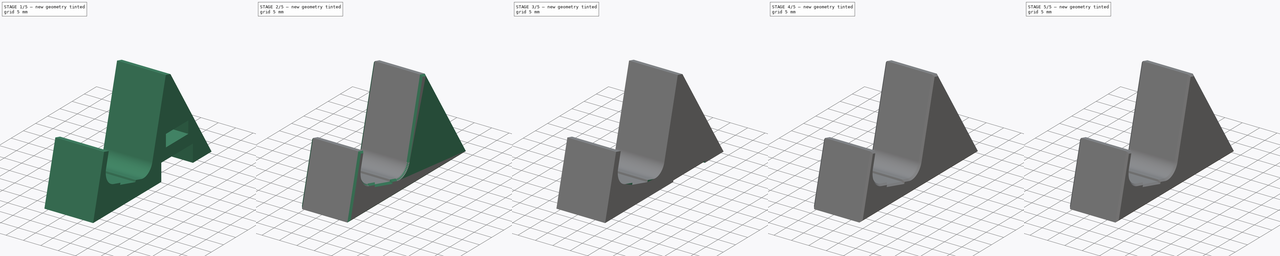
[diagram: build sequence overview — one tinted view per stage of 5, left to right]
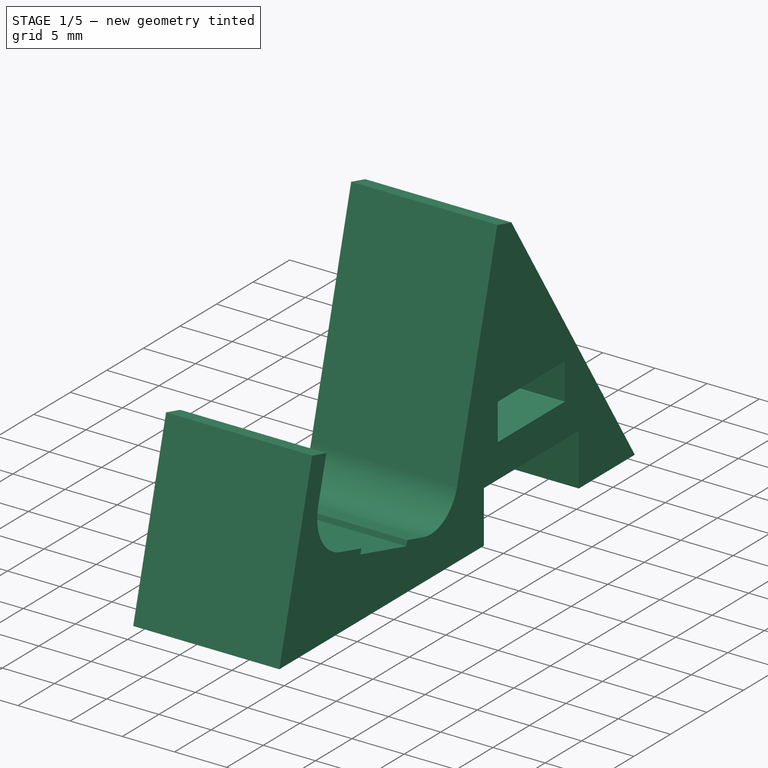
[diagram: stage 1 of 5 — iso view after this stage's code; geometry added in this stage tinted green]
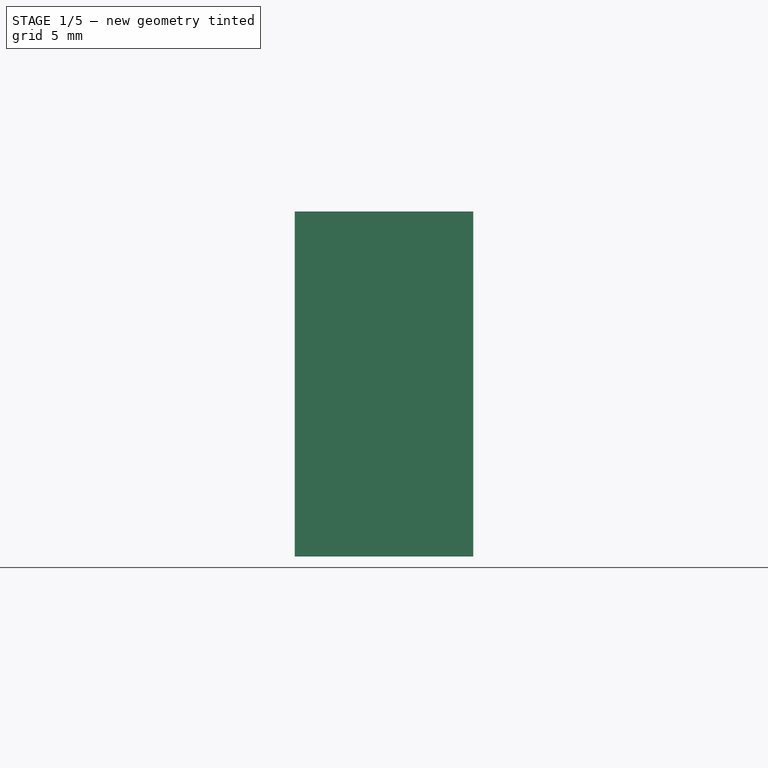
[diagram: stage 1 of 5 — front view after this stage's code; geometry added in this stage tinted green]
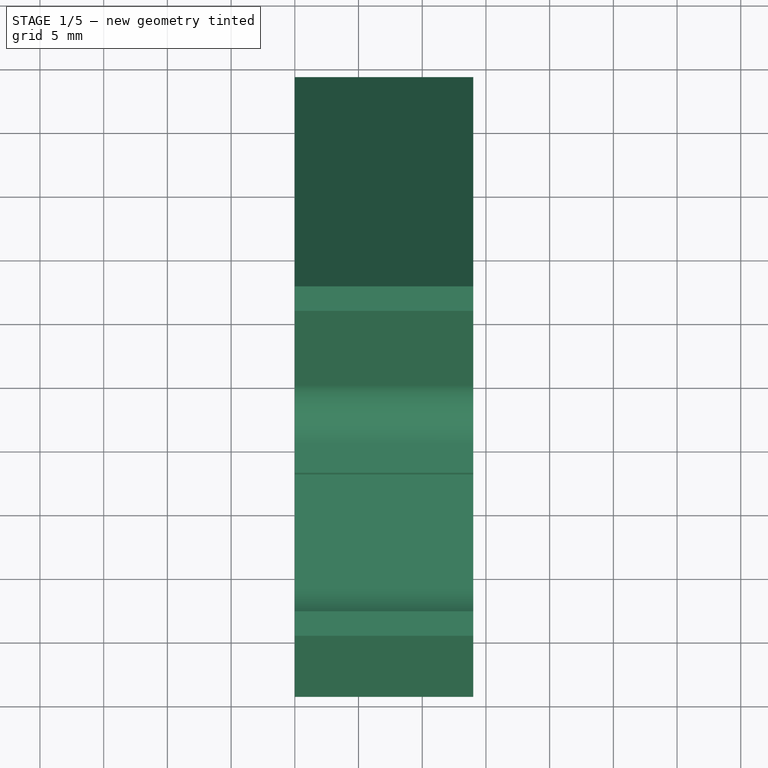
[diagram: stage 1 of 5 — top view after this stage's code; geometry added in this stage tinted green]
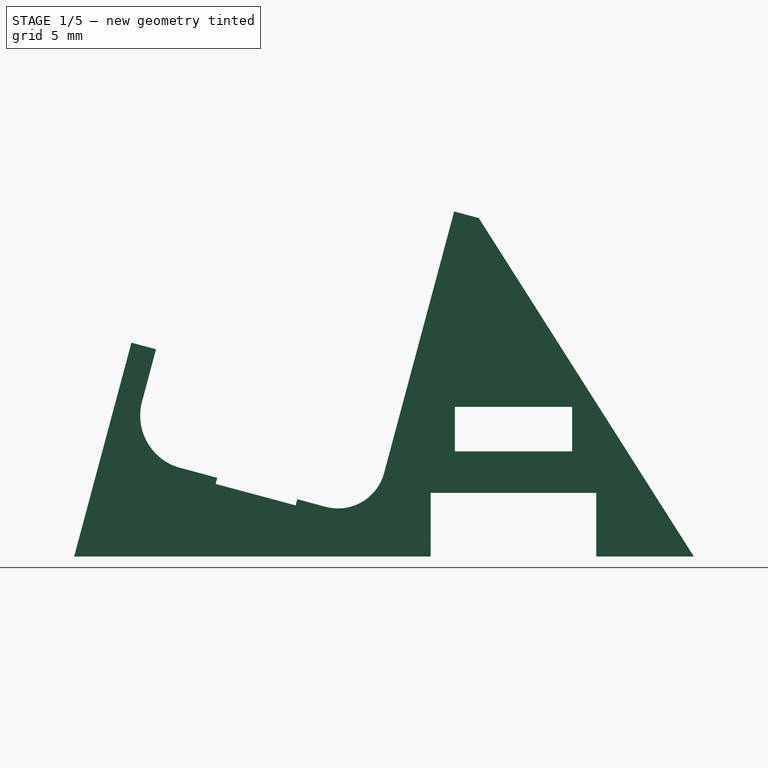
[diagram: stage 1 of 5 — right view after this stage's code; geometry added in this stage tinted green]
FCSTD DOCUMENT  (FreeCAD 0.21R33771 (Git))
Label: New PSP Slim Kit
License: All rights reserved
LicenseURL: http://en.wikipedia.org/wiki/All_rights_reserved
objects: Sketcher::SketchObject×10, PartDesign::Pocket×8, PartDesign::Pad×5, PartDesign::Body×4, Part::Part2DObjectPython×3, PartDesign::FeatureBase×3, PartDesign::Chamfer×3, App::Part×1
note: 52 computed .brp shape members not serialized (recipe doc carries the construction recipe); baked Part::Feature solids carry a one-line shape summary decoded from their .brp

FEATURE [Sketcher::SketchObject] Sketch
  FullyConstrained = true
  MapMode = 5
  Placement = pos=(0,0,0) rot=(0.57735,0.57735,0.57735;2.0944rad)
  Support = -> [YZ_Plane]
  sketch-geometry (18):
    g0: LineSegment StartX=0 StartY=0 StartZ=0 EndX=0 EndY=8.5 EndZ=0
    g1: LineSegment StartX=0 StartY=8.5 StartZ=0 EndX=-2 EndY=8.5 EndZ=0
    g2: LineSegment StartX=-2 StartY=8.5 StartZ=0 EndX=-2 EndY=-2.5 EndZ=0
    g3: LineSegment StartX=-2 StartY=-2.5 StartZ=0 EndX=21.8 EndY=-2.5 EndZ=0
    g4: LineSegment StartX=21.8 StartY=-2.5 StartZ=0 EndX=21.8 EndY=25 EndZ=0
    g5: LineSegment StartX=21.8 StartY=25 StartZ=0 EndX=19.8 EndY=25 EndZ=0
    g6: LineSegment StartX=19.8 StartY=25 StartZ=0 EndX=19.8 EndY=0 EndZ=0
    g7: LineSegment StartX=19.8 StartY=0 StartZ=0 EndX=0 EndY=0 EndZ=0
    g8: LineSegment StartX=7.25 StartY=0 StartZ=0 EndX=7.25 EndY=-0.5 EndZ=0
    g9: LineSegment StartX=7.25 StartY=-0.5 StartZ=0 EndX=13.75 EndY=-0.5 EndZ=0
    g10: LineSegment StartX=13.75 StartY=-0.5 StartZ=0 EndX=13.75 EndY=0 EndZ=0
    g11: LineSegment StartX=7.25 StartY=-0.5 StartZ=0 EndX=7.25 EndY=-2.5 EndZ=0
    g12: ArcOfCircle CenterX=4.25 CenterY=4.25 CenterZ=0 NormalX=0 NormalY=0 NormalZ=1 AngleXU=0 Radius=4.25 StartAngle=3.14159 EndAngle=4.71239
    g13: ArcOfCircle CenterX=16.05 CenterY=3.75 CenterZ=0 NormalX=0 NormalY=0 NormalZ=1 AngleXU=0 Radius=3.75 StartAngle=4.71239 EndAngle=6.28319
    g14: LineSegment StartX=4.25 StartY=9.264e-13 StartZ=0 EndX=7.25 EndY=0 EndZ=0
    g15: LineSegment StartX=13.75 StartY=0 StartZ=0 EndX=16.05 EndY=0 EndZ=0
    g16: LineSegment StartX=0 StartY=8.5 StartZ=0 EndX=0 EndY=4.25 EndZ=0
    g17: LineSegment StartX=19.8 StartY=25 StartZ=0 EndX=19.8 EndY=3.75 EndZ=0
  constraints (52):
    c: Coincident(g0,g-1)
    c: PointOnObject(g0,g-2)
    c: Coincident(g1,g0)
    c: Horizontal(g1)
    c: Coincident(g2,g1)
    c: Vertical(g2)
    c: Coincident(g3,g2)
    c: Horizontal(g3)
    c: Coincident(g4,g3)
    c: Vertical(g4)
    c: Coincident(g5,g4)
    c: Horizontal(g5)
    c: Coincident(g6,g5)
    c: PointOnObject(g6,g-1)
    c: Vertical(g6)
    c: Coincident(g7,g6)
    c: Coincident(g7,g0)
    c: Equal(g1,g5)
    c: Distance(g1) = 2
    c: Distance(g0) = 8.5
    c: Distance(g7) = 19.8
    c: Distance(g6) = 25
    c: PointOnObject(g8,g7)
    c: Vertical(g8)
    c: Coincident(g9,g8)
    c: Horizontal(g9)
    c: Coincident(g10,g9)
    c: PointOnObject(g10,g7)
    c: Vertical(g10)
    c: Distance(g10) = 0.5
    c: Distance(g9) = 6.5
    c: Coincident(g11,g8)
    c: PointOnObject(g11,g3)
    c: Vertical(g11)
    c: Equal(g1,g11)
    c: Distance(g0,g8) = 7.25
    c: PointOnObject(g12,g7)
    c: Tangent(g12,g7)
    c: Tangent(g12,g0) = 1.5708
    c: Coincident(g14,g12)
    c: Coincident(g14,g8)
    c: Coincident(g15,g10)
    c: Coincident(g15,g13)
    c: Coincident(g16,g1)
    c: Coincident(g16,g12)
    c: Coincident(g17,g5)
    c: Coincident(g17,g13)
    c: DistanceY(g0,g12) = 4.25
    c: DistanceY(g6,g13) = 3.75
    c: DistanceX(g13,g6) = 3.75
    c: Horizontal(g15)
    c: Tangent(g13,g6) = 1.5708
FEATURE [PartDesign::Pad] Pad
  Direction = (1,-2e-16,3e-16)
  Length = 14
  Length2 = 10
  Placement = pos=(0,0,0) rot=(1,1,1;2.0944rad)
  Profile = -> Sketch
  ReferenceAxis = -> Sketch [N_Axis]
  Type = 0
FEATURE [Part::Part2DObjectPython] ShapeString  # Draft 2D object (typed FeaturePython)
  FontFile = F:/16 Bit Git Repro/16BitVirtualStudiosDesigns/Font/OpenSans-Regular.ttf
  MakeFace = true
  Placement = pos=(12.175,1,4.8) rot=(0,0.707107,0.707107;3.14159rad)
  Size = 4
  String = PSPS
  Tracking = 0
FEATURE [PartDesign::Pocket] Pocket
  BaseFeature = -> Pad
  Direction = (0,-1,2e-16)
  Length = 0
  Length2 = 5
  Offset = 0.2
  Placement = pos=(0,0,0) rot=(1,1,1;2.0944rad)
  Profile = -> ShapeString
  ReferenceAxis = -> ShapeString [N_Axis]
  Type = 3
  UpToFace = -> Pad [Face1]
FEATURE [PartDesign::Body] Body  label="Profile"
  Group = -> [Sketch,Pad,ShapeString,Pocket]
  Origin = -> Origin
  Tip = -> Pocket
FEATURE [PartDesign::FeatureBase] Clone
  BaseFeature = -> Body
  Placement = pos=(0,0,0) rot=(-1,0,0;0.261799rad)
FEATURE [Sketcher::SketchObject] Sketch001
  ExternalGeometry = -> [Clone]
  FullyConstrained = true
  MapMode = 5
  Placement = pos=(14,-1.5e-14,4e-15) rot=(0.519988,0.677661,0.519988;1.95044rad)
  Support = -> [Clone]
  sketch-geometry (19):
    g0: LineSegment StartX=21.8 StartY=25 StartZ=0 EndX=21.8 EndY=-0.5 EndZ=0
    g1: LineSegment StartX=21.8 StartY=-0.5 StartZ=0 EndX=-2 EndY=-0.5 EndZ=0
    g2: LineSegment StartX=-2 StartY=-0.5 StartZ=0 EndX=-2 EndY=-8.87719 EndZ=0
    g3: LineSegment StartX=-2 StartY=-8.87719 StartZ=0 EndX=25.0259 EndY=-1.63561 EndZ=0
    g4: LineSegment StartX=25.0259 StartY=-1.63561 StartZ=0 EndX=23.7319 EndY=3.19402 EndZ=0
    g5: LineSegment StartX=23.7319 StartY=3.19402 StartZ=0 EndX=36.2889 EndY=6.55867 EndZ=0
    g6: LineSegment StartX=36.2889 StartY=6.55867 StartZ=0 EndX=37.583 EndY=1.72904 EndZ=0
    g7: LineSegment StartX=37.583 StartY=1.72904 StartZ=0 EndX=44.9804 EndY=3.71118 EndZ=0
    g8: LineSegment StartX=44.9804 StartY=3.71118 StartZ=0 EndX=21.8 EndY=25 EndZ=0
    g9: LineSegment StartX=24.7259 StartY=6.82503 StartZ=0 EndX=33.6125 EndY=9.20617 EndZ=0
    g10: LineSegment StartX=33.6125 StartY=9.20617 StartZ=0 EndX=32.7066 EndY=12.5869 EndZ=0
    g11: LineSegment StartX=32.7066 StartY=12.5869 StartZ=0 EndX=23.8201 EndY=10.2058 EndZ=0
    g12: LineSegment StartX=23.8201 StartY=10.2058 StartZ=0 EndX=24.7259 EndY=6.82503 EndZ=0
    g13: LineSegment StartX=29.1692 StartY=8.0156 StartZ=0 EndX=30.0104 EndY=4.87634 EndZ=0
    g14: LineSegment StartX=25.0259 StartY=-1.63561 StartZ=0 EndX=37.583 EndY=1.72904 EndZ=0
    g15: LineSegment StartX=23.8201 StartY=10.2058 StartZ=0 EndX=21.8 EndY=9.6645 EndZ=0
    g16: LineSegment StartX=32.7066 StartY=12.5869 StartZ=0 EndX=34.7267 EndY=13.1282 EndZ=0
    g17: LineSegment StartX=23.7319 StartY=3.19402 StartZ=0 EndX=21.8 EndY=2.67638 EndZ=0
    g18: LineSegment StartX=36.2889 StartY=6.55867 StartZ=0 EndX=40.6171 EndY=7.71842 EndZ=0
  constraints (54):
    c: Coincident(g-4,g0)
    c: PointOnObject(g0,g-4)
    c: Coincident(g0,g1)
    c: PointOnObject(g1,g-3)
    c: Horizontal(g1)
    c: Coincident(g1,g2)
    c: Coincident(g2,g3)
    c: Coincident(g3,g4)
    c: Coincident(g4,g5)
    c: Coincident(g5,g6)
    c: Coincident(g6,g7)
    c: Coincident(g7,g8)
    c: Coincident(g8,g0)
    c: Coincident(g9,g10)
    c: Coincident(g10,g11)
    c: Coincident(g11,g12)
    c: Coincident(g12,g9)
    c: PointOnObject(g-5,g1)
    c: PointOnObject(g-3,g2)
    c: PointOnObject(g-4,g3)
    c: Angle(g3,g2) = 1.309
    c: Parallel(g3,g7)
    c: Parallel(g7,g5)
    c: Parallel(g9,g5)
    c: Parallel(g9,g11)
    c: Coincident(g14,g3)
    c: Coincident(g14,g6)
    c: Parallel(g14,g3)
    c: Perpendicular(g14,g4)
    c: Perpendicular(g6,g14)
    c: Perpendicular(g10,g9)
    c: Perpendicular(g11,g12)
    c: Symmetric(g9,g9,g13)
    c: Symmetric(g4,g5,g13)
    c: Perpendicular(g5,g13)
    c: Distance(g14) = 13
    c: Distance(g6) = 5
    c: Distance(g13) = 3.25
    c: Distance(g10) = 3.5
    c: Distance(g11) = 9.2
    c: Coincident(g15,g11)
    c: PointOnObject(g15,g0)
    c: Coincident(g16,g10)
    c: PointOnObject(g16,g8)
    c: Coincident(g17,g4)
    c: PointOnObject(g17,g0)
    c: Coincident(g18,g5)
    c: PointOnObject(g18,g8)
    c: Equal(g15,g16)
    c: Parallel(g15,g16)
    c: Parallel(g16,g18)
    c: Parallel(g17,g15)
    c: Parallel(g15,g11)
    c: Distance(g17) = 2
FEATURE [PartDesign::Pad] Pad001
  BaseFeature = -> Clone
  Direction = (1,-1.1e-15,2e-16)
  Length = 14
  Length2 = 10
  Placement = pos=(0,0,0) rot=(-1,0,0;0.261799rad)
  Profile = -> Sketch001
  ReferenceAxis = -> Sketch001 [N_Axis]
  Refine = true
  Reversed = true
  Type = 0
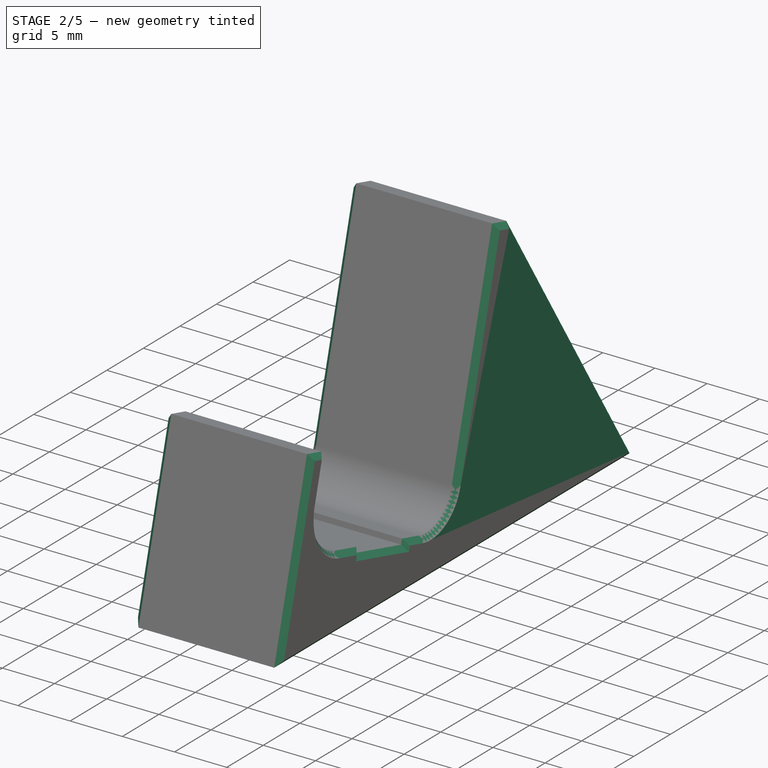
[diagram: stage 2 of 5 — iso view after this stage's code; geometry added in this stage tinted green]
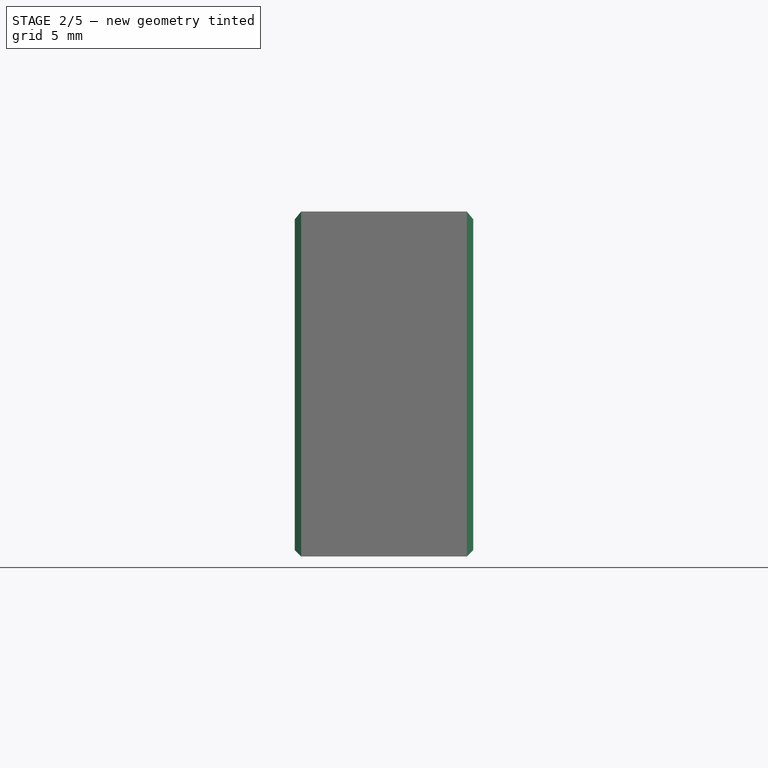
[diagram: stage 2 of 5 — front view after this stage's code; geometry added in this stage tinted green]
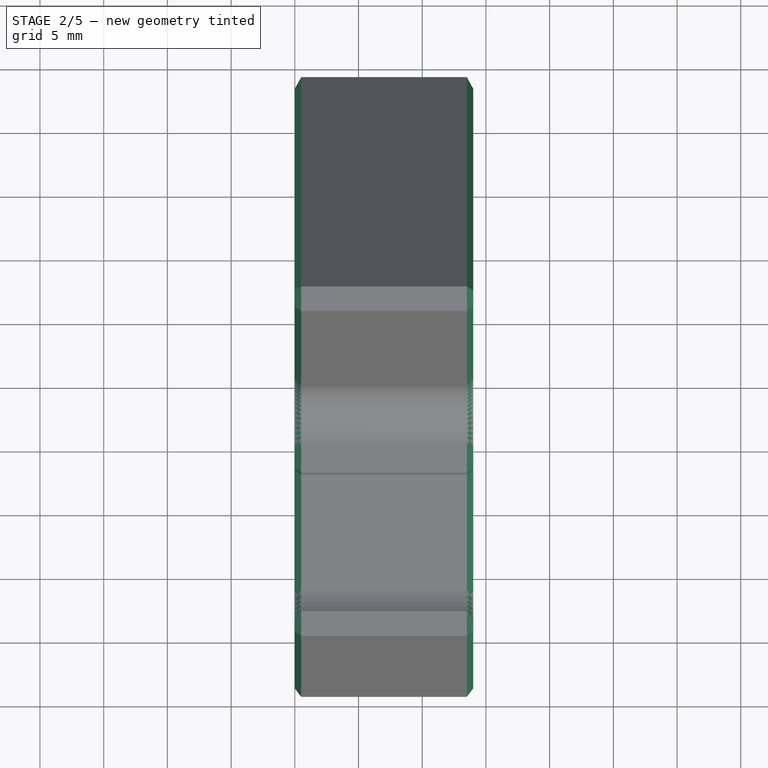
[diagram: stage 2 of 5 — top view after this stage's code; geometry added in this stage tinted green]
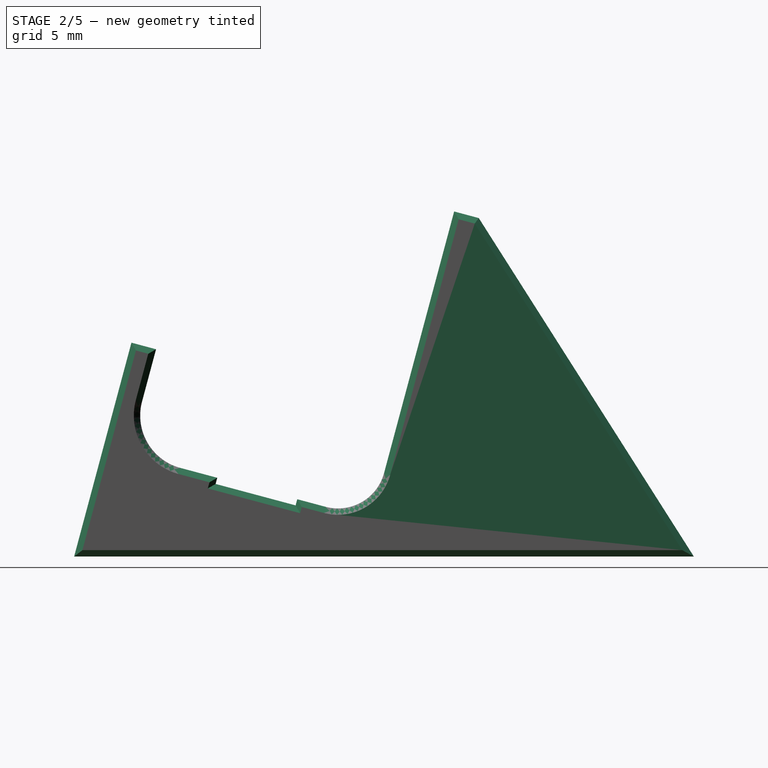
[diagram: stage 2 of 5 — right view after this stage's code; geometry added in this stage tinted green]
FEATURE [Sketcher::SketchObject] Sketch009
  ExternalGeometry = -> [Pad001]
  FullyConstrained = true
  MapMode = 5
  Placement = pos=(14,-6.9e-15,8.7e-15) rot=(0.519988,0.677661,0.519988;1.95044rad)
  Support = -> [Pad001]
  sketch-geometry (8):
    g0: LineSegment StartX=23.8201 StartY=10.2058 StartZ=0 EndX=32.7066 EndY=12.5869 EndZ=0
    g1: LineSegment StartX=32.7066 StartY=12.5869 StartZ=0 EndX=33.6125 EndY=9.20617 EndZ=0
    g2: LineSegment StartX=33.6125 StartY=9.20617 StartZ=0 EndX=24.7259 EndY=6.82503 EndZ=0
    g3: LineSegment StartX=24.7259 StartY=6.82503 StartZ=0 EndX=23.8201 EndY=10.2058 EndZ=0
    g4: LineSegment StartX=23.7319 StartY=3.19402 StartZ=0 EndX=36.2889 EndY=6.55867 EndZ=0
    g5: LineSegment StartX=36.2889 StartY=6.55867 StartZ=0 EndX=37.583 EndY=1.72904 EndZ=0
    g6: LineSegment StartX=37.583 StartY=1.72904 StartZ=0 EndX=25.0259 EndY=-1.63561 EndZ=0
    g7: LineSegment StartX=25.0259 StartY=-1.63561 StartZ=0 EndX=23.7319 EndY=3.19402 EndZ=0
  constraints (16):
    c: Coincident(g-6,g0)
    c: Coincident(g0,g-5)
    c: Coincident(g0,g1)
    c: Coincident(g1,g-5)
    c: Coincident(g1,g2)
    c: Coincident(g2,g-6)
    c: Coincident(g2,g3)
    c: Coincident(g3,g0)
    c: Coincident(g-3,g4)
    c: Coincident(g4,g-4)
    c: Coincident(g4,g5)
    c: Coincident(g5,g-4)
    c: Coincident(g5,g6)
    c: Coincident(g6,g-3)
    c: Coincident(g6,g7)
    c: Coincident(g7,g4)
FEATURE [PartDesign::Pad] Pad002
  BaseFeature = -> Pad001
  Direction = (1,-5e-16,6e-16)
  Length = 14
  Length2 = 10
  Placement = pos=(0,0,0) rot=(-1,0,0;0.261799rad)
  Profile = -> Sketch009
  ReferenceAxis = -> Sketch009 [N_Axis]
  Refine = true
  Reversed = true
  Type = 0
FEATURE [PartDesign::Pocket] Pocket004
  BaseFeature = -> Pad002
  Direction = (0,0,1)
  Length = 0
  Length2 = 5
  Offset = 0.5
  Placement = pos=(0,0,0) rot=(-1,0,0;0.261799rad)
  Profile = -> Sketch005
  ReferenceAxis = -> Sketch005 [N_Axis]
  Type = 3
  UpToFace = -> Pad002 [Face132]
FEATURE [PartDesign::Pocket] Pocket005
  BaseFeature = -> Pocket004
  Direction = (0,0,1)
  Length = 0
  Length2 = 5
  Offset = 1
  Placement = pos=(0,0,0) rot=(-1,0,0;0.261799rad)
  Profile = -> Sketch008
  ReferenceAxis = -> Sketch008 [N_Axis]
  Refine = true
  Type = 3
  UpToFace = -> Pocket004 [Face110]
FEATURE [PartDesign::Body] Body002  label="Kit Left"
  Group = -> [Clone001,Sketch002,Pocket001,Sketch003,Pocket002,Sketch007,Pocket003,Sketch010,Pad003,ShapeString002,Pocket007,Chamfer001]
  Origin = -> Origin003
  Placement = pos=(100,0,0) rot=(0,0,1;0rad)
  Tip = -> Chamfer001
FEATURE [PartDesign::Chamfer] Chamfer002
  Angle = 45
  Base = -> Pocket005 [Face4,Face3]
  BaseFeature = -> Pocket005
  ChamferType = 0
  FlipDirection = false
  Placement = pos=(0,0,0) rot=(-1,0,0;0.261799rad)
  Size = 0.5
  Size2 = 1
  SupportTransform = false
  UseAllEdges = false
FEATURE [PartDesign::Body] Body001  label="Stand"
  Group = -> [Clone,Sketch001,Pad001,Sketch005,Sketch009,Pad002,Sketch008,Pocket004,Pocket005,Chamfer002]
  Origin = -> Origin002
  Placement = pos=(50,0,0) rot=(0,0,1;0rad)
  Tip = -> Chamfer002
FEATURE [App::Part] Part  label="PSP Slim-"
  Group = -> [Body,Body001,Body002,Body003]
  Origin = -> Origin001
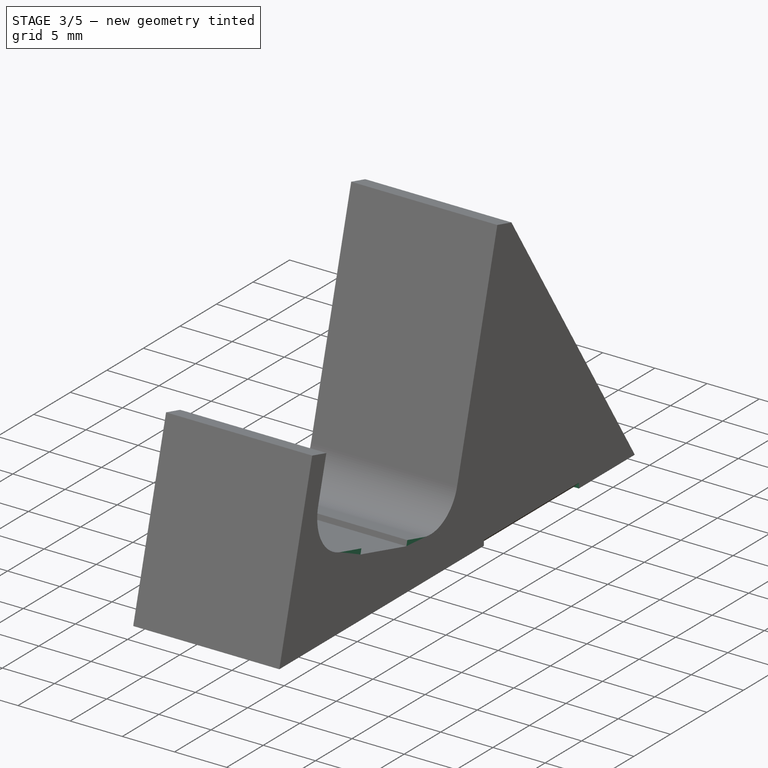
[diagram: stage 3 of 5 — iso view after this stage's code; geometry added in this stage tinted green]
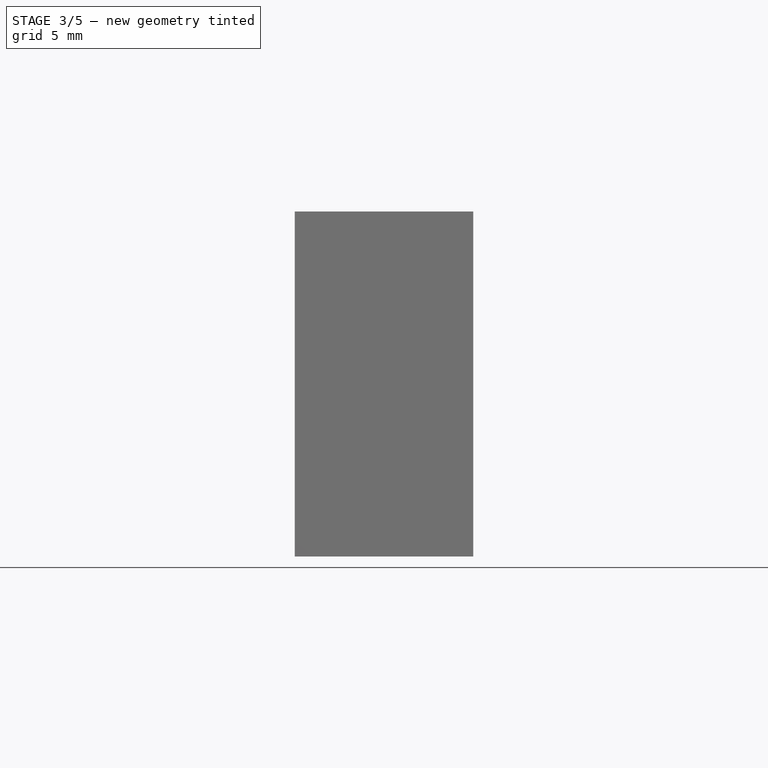
[diagram: stage 3 of 5 — front view after this stage's code; geometry added in this stage tinted green]
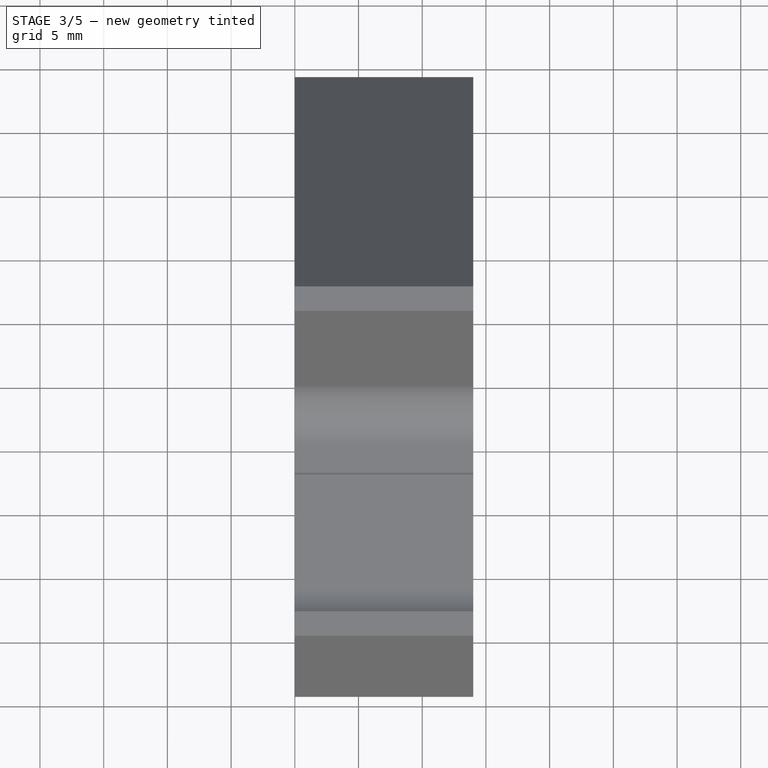
[diagram: stage 3 of 5 — top view after this stage's code; geometry added in this stage tinted green]
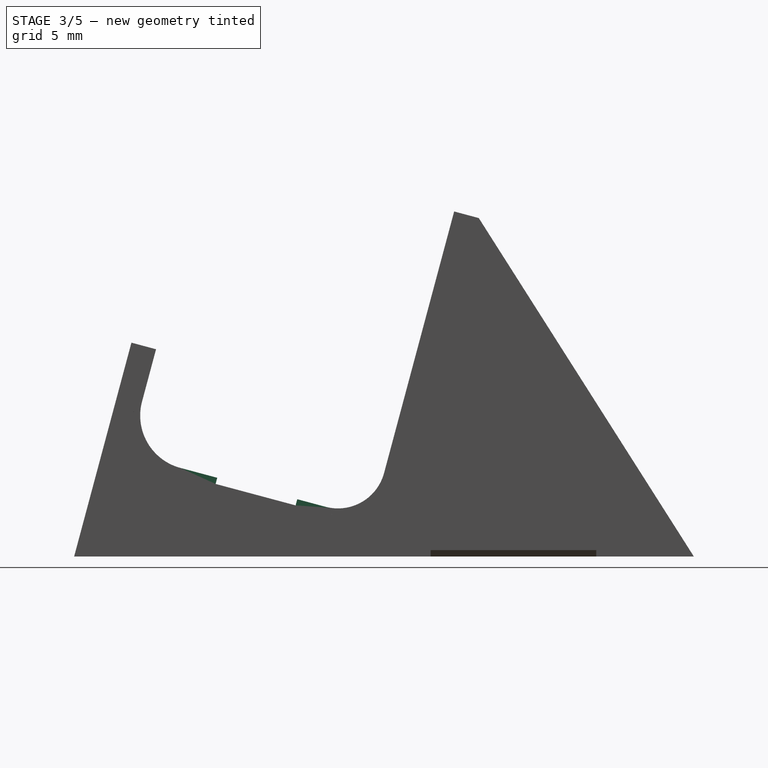
[diagram: stage 3 of 5 — right view after this stage's code; geometry added in this stage tinted green]
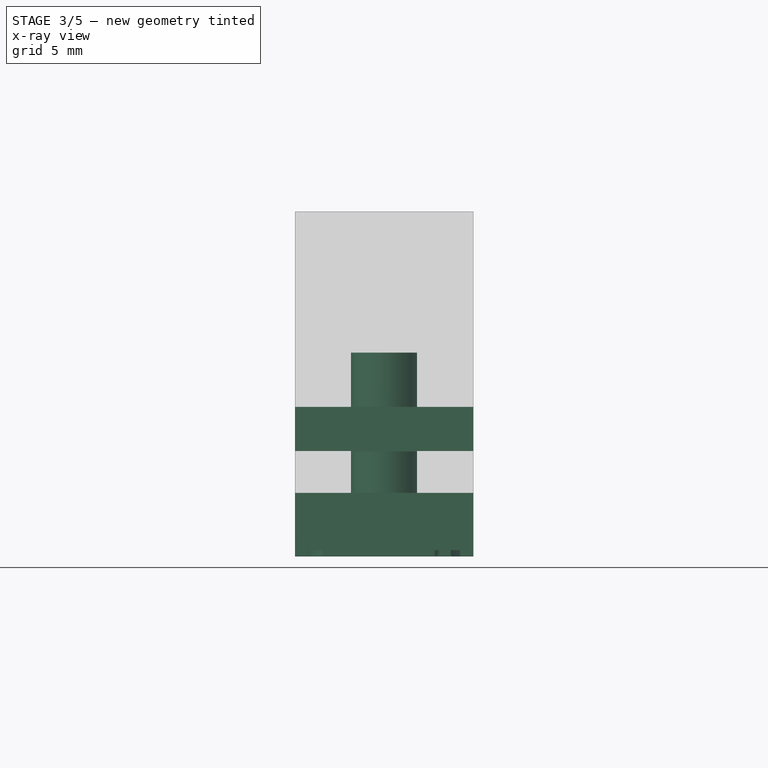
[diagram: stage 3 of 5 — x-ray composite at the front view; earlier geometry ghosted, this stage's added geometry solid]
FEATURE [PartDesign::FeatureBase] Clone001
  BaseFeature = -> Pad001
  Placement = pos=(0,0,0) rot=(-1,0,0;0.261799rad)
FEATURE [Sketcher::SketchObject] Sketch002
  ExternalGeometry = -> [Clone001]
  FullyConstrained = true
  MapMode = 5
  Placement = pos=(5e-16,-3e-16,-3.05707) rot=(1,0,0;3.14159rad)
  Support = -> [Clone001]
  sketch-geometry (1):
    g0: Circle CenterX=7 CenterY=-30.2499 CenterZ=0 NormalX=0 NormalY=0 NormalZ=1 AngleXU=0 Radius=2.6
  constraints (2):
    c: Symmetric(g-3,g-4,g0)
    c: Diameter(g0) = 5.2
FEATURE [PartDesign::Pocket] Pocket001
  BaseFeature = -> Clone001
  Direction = (-2e-16,1e-16,1)
  Length = 11
  Length2 = 5
  Placement = pos=(0,0,0) rot=(-1,0,0;0.261799rad)
  Profile = -> Sketch002
  ReferenceAxis = -> Sketch002 [N_Axis]
  Type = 0
FEATURE [Sketcher::SketchObject] Sketch003  label="PSP Out"
  FullyConstrained = false
  Placement = pos=(0.27,15.99,-11) rot=(1,0,0;3.14159rad)
  sketch-geometry (9):
    g0: BSplineCurve PolesCount=2 KnotsCount=2 Degree=1 IsPeriodic=0
    g1: BSplineCurve PolesCount=3 KnotsCount=2 Degree=2 IsPeriodic=0
    g2: BSplineCurve PolesCount=2 KnotsCount=2 Degree=1 IsPeriodic=0
    g3: BSplineCurve PolesCount=3 KnotsCount=2 Degree=2 IsPeriodic=0
    g4: BSplineCurve PolesCount=2 KnotsCount=2 Degree=1 IsPeriodic=0
    g5: BSplineCurve PolesCount=3 KnotsCount=2 Degree=2 IsPeriodic=0
    g6: BSplineCurve PolesCount=2 KnotsCount=2 Degree=1 IsPeriodic=0
    g7: BSplineCurve PolesCount=3 KnotsCount=2 Degree=2 IsPeriodic=0
    g8: BSplineCurve PolesCount=2 KnotsCount=2 Degree=1 IsPeriodic=0
  constraints (9):
    c: Coincident(g0,g1)
    c: Coincident(g1,g2)
    c: Coincident(g2,g3)
    c: Coincident(g3,g4)
    c: Coincident(g4,g5)
    c: Coincident(g5,g6)
    c: Coincident(g6,g7)
    c: Coincident(g7,g8)
    c: Coincident(g8,g0)
FEATURE [Sketcher::SketchObject] Sketch005  label="PSP Out001"
  FullyConstrained = false
  Placement = pos=(0.27,36.65,-11) rot=(1,0,0;3.14159rad)
  sketch-geometry (9):
    g0: BSplineCurve PolesCount=2 KnotsCount=2 Degree=1 IsPeriodic=0
    g1: BSplineCurve PolesCount=3 KnotsCount=2 Degree=2 IsPeriodic=0
    g2: BSplineCurve PolesCount=2 KnotsCount=2 Degree=1 IsPeriodic=0
    g3: BSplineCurve PolesCount=3 KnotsCount=2 Degree=2 IsPeriodic=0
    g4: BSplineCurve PolesCount=2 KnotsCount=2 Degree=1 IsPeriodic=0
    g5: BSplineCurve PolesCount=3 KnotsCount=2 Degree=2 IsPeriodic=0
    g6: BSplineCurve PolesCount=2 KnotsCount=2 Degree=1 IsPeriodic=0
    g7: BSplineCurve PolesCount=3 KnotsCount=2 Degree=2 IsPeriodic=0
    g8: BSplineCurve PolesCount=2 KnotsCount=2 Degree=1 IsPeriodic=0
  constraints (9):
    c: Coincident(g0,g1)
    c: Coincident(g1,g2)
    c: Coincident(g2,g3)
    c: Coincident(g3,g4)
    c: Coincident(g4,g5)
    c: Coincident(g5,g6)
    c: Coincident(g6,g7)
    c: Coincident(g7,g8)
    c: Coincident(g8,g0)
FEATURE [PartDesign::Pocket] Pocket002
  BaseFeature = -> Pocket001
  Direction = (0,0,1)
  Length = 0
  Length2 = 5
  Offset = 0.5
  Placement = pos=(0,0,0) rot=(-1,0,0;0.261799rad)
  Profile = -> Sketch003
  ReferenceAxis = -> Sketch003 [N_Axis]
  Type = 3
  UpToFace = -> Pocket001 [Face114]
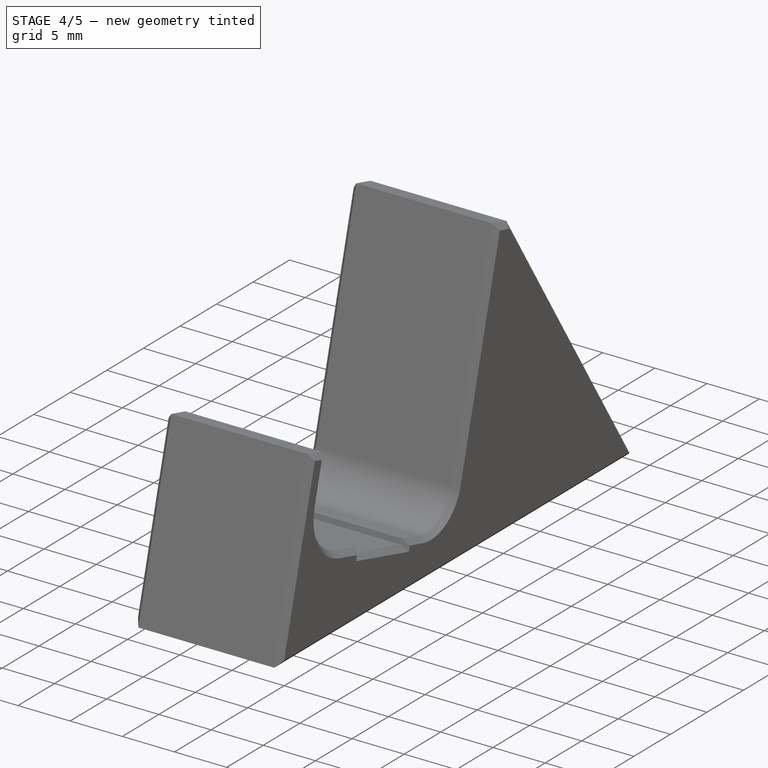
[diagram: stage 4 of 5 — iso view after this stage's code; geometry added in this stage tinted green]
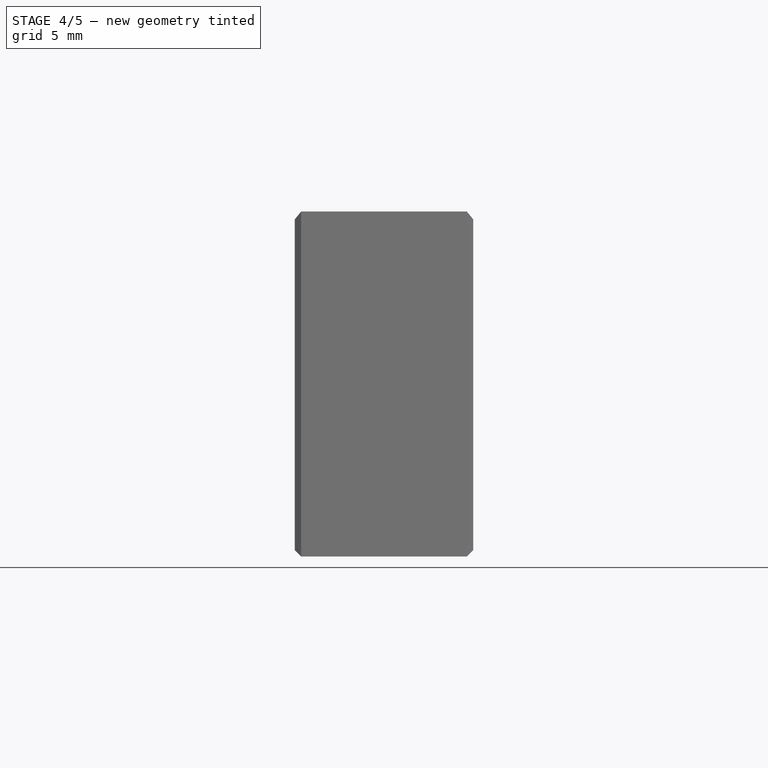
[diagram: stage 4 of 5 — front view after this stage's code; geometry added in this stage tinted green]
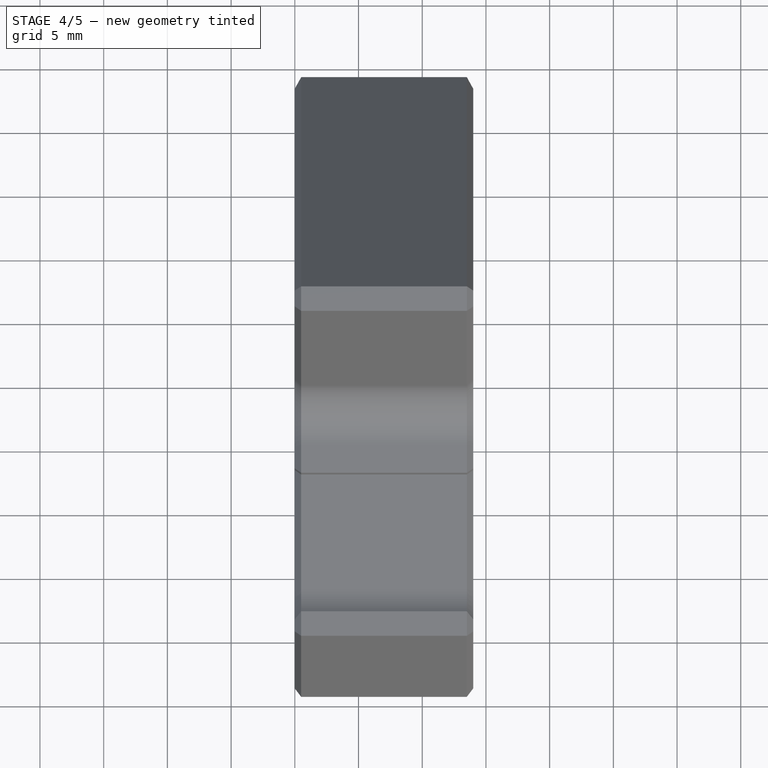
[diagram: stage 4 of 5 — top view after this stage's code; geometry added in this stage tinted green]
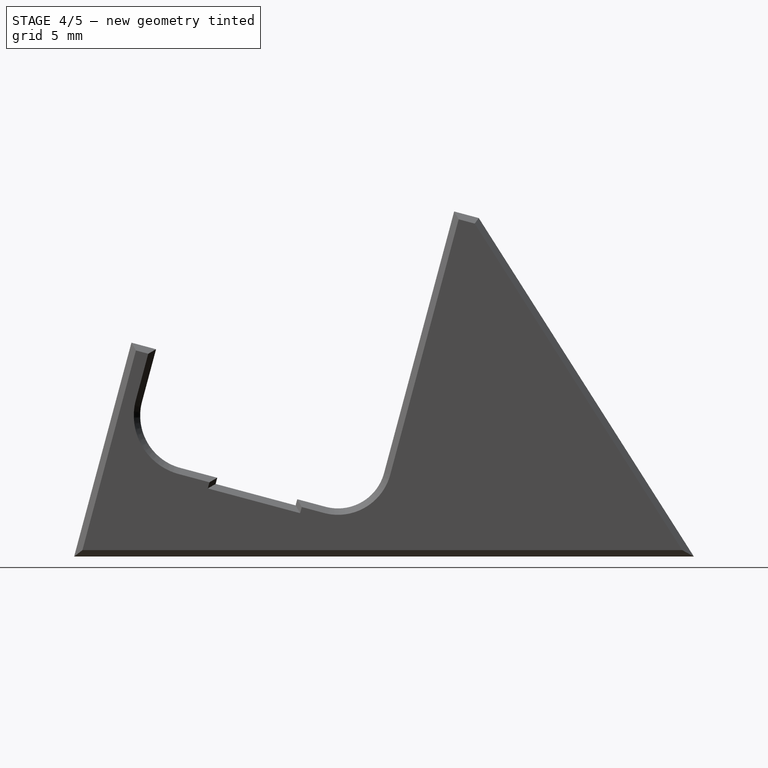
[diagram: stage 4 of 5 — right view after this stage's code; geometry added in this stage tinted green]
FEATURE [Sketcher::SketchObject] Sketch007  label="PSP In"
  FullyConstrained = false
  Placement = pos=(0.27,15.99,-11) rot=(1,0,0;3.14159rad)
  sketch-geometry (25):
    g0: BSplineCurve PolesCount=2 KnotsCount=2 Degree=1 IsPeriodic=0
    g1: BSplineCurve PolesCount=3 KnotsCount=2 Degree=2 IsPeriodic=0
    g2: BSplineCurve PolesCount=2 KnotsCount=2 Degree=1 IsPeriodic=0
    g3: BSplineCurve PolesCount=3 KnotsCount=2 Degree=2 IsPeriodic=0
    g4: BSplineCurve PolesCount=2 KnotsCount=2 Degree=1 IsPeriodic=0
    g5: BSplineCurve PolesCount=3 KnotsCount=2 Degree=2 IsPeriodic=0
    g6: BSplineCurve PolesCount=2 KnotsCount=2 Degree=1 IsPeriodic=0
    g7: BSplineCurve PolesCount=3 KnotsCount=2 Degree=2 IsPeriodic=0
    g8: BSplineCurve PolesCount=2 KnotsCount=2 Degree=1 IsPeriodic=0
    g9: BSplineCurve PolesCount=3 KnotsCount=2 Degree=2 IsPeriodic=0
    g10: BSplineCurve PolesCount=2 KnotsCount=2 Degree=1 IsPeriodic=0
    g11: BSplineCurve PolesCount=3 KnotsCount=2 Degree=2 IsPeriodic=0
    g12: BSplineCurve PolesCount=2 KnotsCount=2 Degree=1 IsPeriodic=0
    g13: BSplineCurve PolesCount=2 KnotsCount=2 Degree=1 IsPeriodic=0
    g14: BSplineCurve PolesCount=3 KnotsCount=2 Degree=2 IsPeriodic=0
    g15: BSplineCurve PolesCount=2 KnotsCount=2 Degree=1 IsPeriodic=0
    g16: BSplineCurve PolesCount=3 KnotsCount=2 Degree=2 IsPeriodic=0
    g17: BSplineCurve PolesCount=2 KnotsCount=2 Degree=1 IsPeriodic=0
    g18: BSplineCurve PolesCount=3 KnotsCount=2 Degree=2 IsPeriodic=0
    g19: BSplineCurve PolesCount=2 KnotsCount=2 Degree=1 IsPeriodic=0
    g20: BSplineCurve PolesCount=7 KnotsCount=4 Degree=2 IsPeriodic=0
    g21: BSplineCurve PolesCount=2 KnotsCount=2 Degree=1 IsPeriodic=0
    g22: BSplineCurve PolesCount=2 KnotsCount=2 Degree=1 IsPeriodic=0
    g23: BSplineCurve PolesCount=2 KnotsCount=2 Degree=1 IsPeriodic=0
    g24: BSplineCurve PolesCount=2 KnotsCount=2 Degree=1 IsPeriodic=0
  constraints (24):
    c: Coincident(g0,g1)
    c: Coincident(g1,g2)
    c: Coincident(g2,g3)
    c: Coincident(g3,g4)
    c: Coincident(g4,g5)
    c: Coincident(g5,g6)
    c: Coincident(g6,g0)
    c: Coincident(g7,g8)
    c: Coincident(g8,g9)
    c: Coincident(g9,g10)
    c: Coincident(g10,g11)
    c: Coincident(g11,g12)
    c: Coincident(g12,g7)
    c: Coincident(g13,g14)
    c: Coincident(g14,g15)
    c: Coincident(g15,g16)
    c: Coincident(g16,g17)
    c: Coincident(g17,g18)
    c: Coincident(g18,g19)
    c: Coincident(g19,g13)
    c: Coincident(g21,g22)
    c: Coincident(g22,g23)
    c: Coincident(g23,g24)
    c: Coincident(g24,g21)
FEATURE [Sketcher::SketchObject] Sketch008  label="PSP In001"
  FullyConstrained = false
  Placement = pos=(0.27,36.65,-11) rot=(1,0,0;3.14159rad)
  sketch-geometry (25):
    g0: BSplineCurve PolesCount=2 KnotsCount=2 Degree=1 IsPeriodic=0
    g1: BSplineCurve PolesCount=3 KnotsCount=2 Degree=2 IsPeriodic=0
    g2: BSplineCurve PolesCount=2 KnotsCount=2 Degree=1 IsPeriodic=0
    g3: BSplineCurve PolesCount=3 KnotsCount=2 Degree=2 IsPeriodic=0
    g4: BSplineCurve PolesCount=2 KnotsCount=2 Degree=1 IsPeriodic=0
    g5: BSplineCurve PolesCount=3 KnotsCount=2 Degree=2 IsPeriodic=0
    g6: BSplineCurve PolesCount=2 KnotsCount=2 Degree=1 IsPeriodic=0
    g7: BSplineCurve PolesCount=3 KnotsCount=2 Degree=2 IsPeriodic=0
    g8: BSplineCurve PolesCount=2 KnotsCount=2 Degree=1 IsPeriodic=0
    g9: BSplineCurve PolesCount=3 KnotsCount=2 Degree=2 IsPeriodic=0
    g10: BSplineCurve PolesCount=2 KnotsCount=2 Degree=1 IsPeriodic=0
    g11: BSplineCurve PolesCount=3 KnotsCount=2 Degree=2 IsPeriodic=0
    g12: BSplineCurve PolesCount=2 KnotsCount=2 Degree=1 IsPeriodic=0
    g13: BSplineCurve PolesCount=2 KnotsCount=2 Degree=1 IsPeriodic=0
    g14: BSplineCurve PolesCount=3 KnotsCount=2 Degree=2 IsPeriodic=0
    g15: BSplineCurve PolesCount=2 KnotsCount=2 Degree=1 IsPeriodic=0
    g16: BSplineCurve PolesCount=3 KnotsCount=2 Degree=2 IsPeriodic=0
    g17: BSplineCurve PolesCount=2 KnotsCount=2 Degree=1 IsPeriodic=0
    g18: BSplineCurve PolesCount=3 KnotsCount=2 Degree=2 IsPeriodic=0
    g19: BSplineCurve PolesCount=2 KnotsCount=2 Degree=1 IsPeriodic=0
    g20: BSplineCurve PolesCount=7 KnotsCount=4 Degree=2 IsPeriodic=0
    g21: BSplineCurve PolesCount=2 KnotsCount=2 Degree=1 IsPeriodic=0
    g22: BSplineCurve PolesCount=2 KnotsCount=2 Degree=1 IsPeriodic=0
    g23: BSplineCurve PolesCount=2 KnotsCount=2 Degree=1 IsPeriodic=0
    g24: BSplineCurve PolesCount=2 KnotsCount=2 Degree=1 IsPeriodic=0
  constraints (24):
    c: Coincident(g0,g1)
    c: Coincident(g1,g2)
    c: Coincident(g2,g3)
    c: Coincident(g3,g4)
    c: Coincident(g4,g5)
    c: Coincident(g5,g6)
    c: Coincident(g6,g0)
    c: Coincident(g7,g8)
    c: Coincident(g8,g9)
    c: Coincident(g9,g10)
    c: Coincident(g10,g11)
    c: Coincident(g11,g12)
    c: Coincident(g12,g7)
    c: Coincident(g13,g14)
    c: Coincident(g14,g15)
    c: Coincident(g15,g16)
    c: Coincident(g16,g17)
    c: Coincident(g17,g18)
    c: Coincident(g18,g19)
    c: Coincident(g19,g13)
    c: Coincident(g21,g22)
    c: Coincident(g22,g23)
    c: Coincident(g23,g24)
    c: Coincident(g24,g21)
FEATURE [PartDesign::Pocket] Pocket003
  BaseFeature = -> Pocket002
  Direction = (0,0,1)
  Length = 0
  Length2 = 5
  Offset = 1
  Placement = pos=(0,0,0) rot=(-1,0,0;0.261799rad)
  Profile = -> Sketch007
  ReferenceAxis = -> Sketch007 [N_Axis]
  Refine = true
  Type = 3
  UpToFace = -> Pocket002 [Face114]
FEATURE [Sketcher::SketchObject] Sketch010
  ExternalGeometry = -> [Pocket003]
  FullyConstrained = true
  MapMode = 5
  Placement = pos=(-8.4e-15,0,0) rot=(0.519988,-0.677661,-0.519988;1.95044rad)
  Support = -> [Pocket003]
  sketch-geometry (4):
    g0: LineSegment StartX=-32.7066 StartY=12.5869 StartZ=0 EndX=-23.8201 EndY=10.2058 EndZ=0
    g1: LineSegment StartX=-23.8201 StartY=10.2058 StartZ=0 EndX=-24.7259 EndY=6.82503 EndZ=0
    g2: LineSegment StartX=-24.7259 StartY=6.82503 StartZ=0 EndX=-33.6125 EndY=9.20617 EndZ=0
    g3: LineSegment StartX=-33.6125 StartY=9.20617 StartZ=0 EndX=-32.7066 EndY=12.5869 EndZ=0
  constraints (8):
    c: Coincident(g-3,g0)
    c: Coincident(g0,g-4)
    c: Coincident(g0,g1)
    c: Coincident(g1,g-4)
    c: Coincident(g1,g2)
    c: Coincident(g2,g-3)
    c: Coincident(g2,g3)
    c: Coincident(g3,g0)
FEATURE [PartDesign::Pad] Pad003
  BaseFeature = -> Pocket003
  Direction = (-1,9e-16,-1.1e-15)
  Length = 2
  Length2 = 10
  Placement = pos=(0,0,0) rot=(-1,0,0;0.261799rad)
  Profile = -> Sketch010
  ReferenceAxis = -> Sketch010 [N_Axis]
  Refine = true
  Reversed = true
  Type = 0
FEATURE [PartDesign::Body] Body003  label="Kit Right"
  Group = -> [Clone002,Sketch011,Pad004,ShapeString001,Pocket006,Chamfer]
  Origin = -> Origin004
  Placement = pos=(150,0,0) rot=(0,0,1;0rad)
  Tip = -> Chamfer
FEATURE [PartDesign::Pocket] Pocket007
  BaseFeature = -> Pad003
  Direction = (0,0,1)
  Length = 0
  Length2 = 5
  Offset = 0.5
  Placement = pos=(0,0,0) rot=(-1,0,0;0.261799rad)
  Profile = -> ShapeString002
  ReferenceAxis = -> ShapeString002 [N_Axis]
  Type = 3
  UpToFace = -> Pad003 [Face113]
FEATURE [PartDesign::Chamfer] Chamfer001
  Angle = 45
  Base = -> Pocket007 [Face4,Face3]
  BaseFeature = -> Pocket007
  ChamferType = 0
  FlipDirection = false
  Placement = pos=(0,0,0) rot=(-1,0,0;0.261799rad)
  Size = 0.5
  Size2 = 1
  SupportTransform = false
  UseAllEdges = false
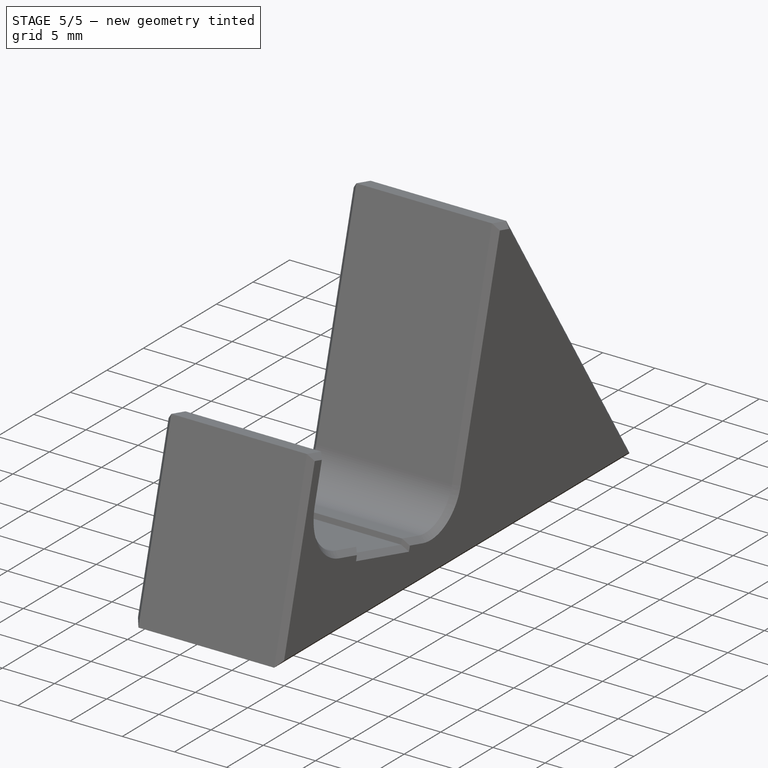
[diagram: stage 5 of 5 — iso view after this stage's code; geometry added in this stage tinted green]
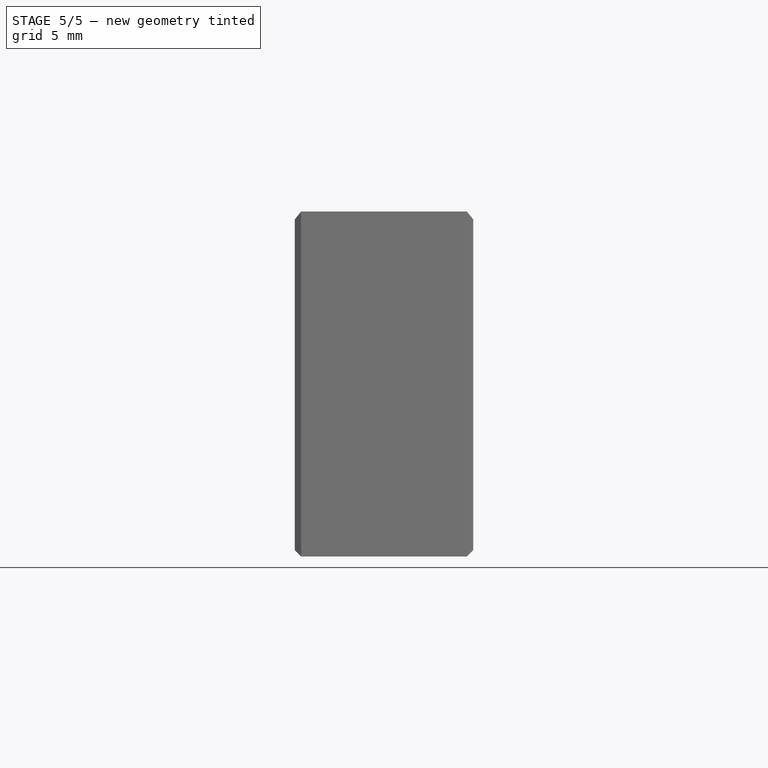
[diagram: stage 5 of 5 — front view after this stage's code; geometry added in this stage tinted green]
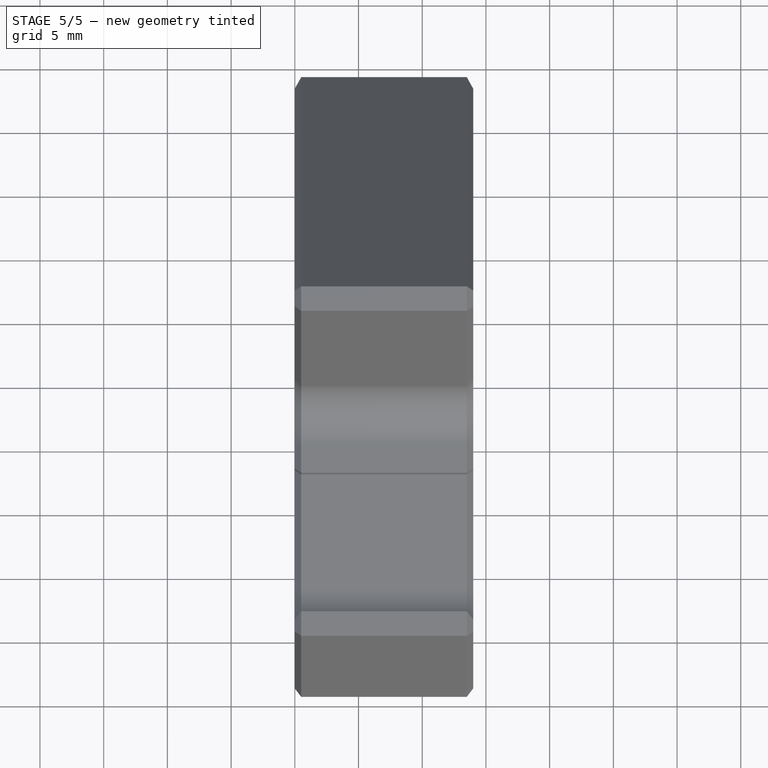
[diagram: stage 5 of 5 — top view after this stage's code; geometry added in this stage tinted green]
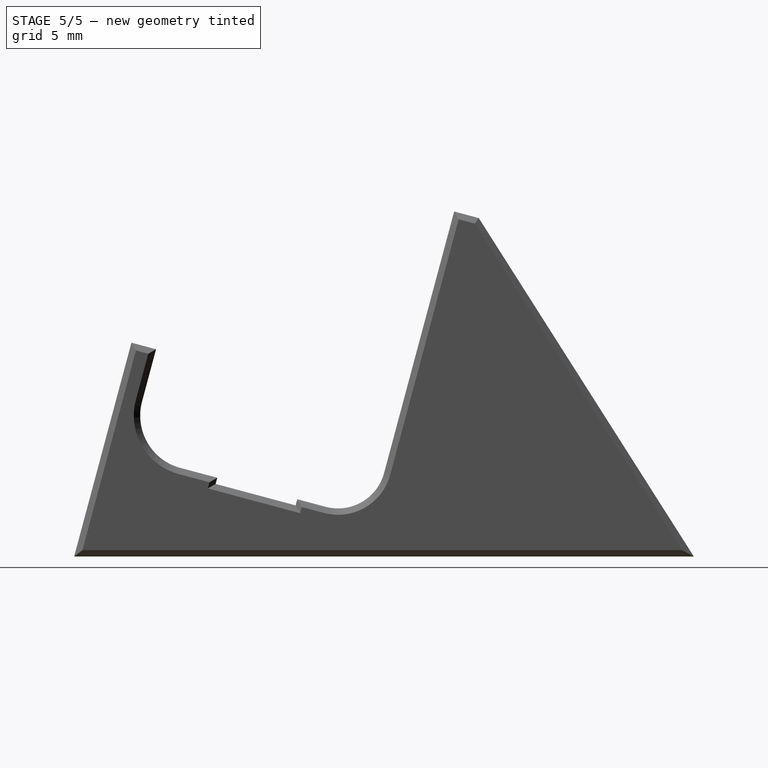
[diagram: stage 5 of 5 — right view after this stage's code; geometry added in this stage tinted green]
FEATURE [PartDesign::FeatureBase] Clone002
  BaseFeature = -> Pocket003
  Placement = pos=(0,0,0) rot=(-1,0,0;0.261799rad)
FEATURE [Sketcher::SketchObject] Sketch011
  ExternalGeometry = -> [Clone002]
  FullyConstrained = true
  MapMode = 5
  Placement = pos=(14,-6.9e-15,8.7e-15) rot=(0.519988,0.677661,0.519988;1.95044rad)
  Support = -> [Clone002]
  sketch-geometry (4):
    g0: LineSegment StartX=23.8201 StartY=10.2058 StartZ=0 EndX=24.7259 EndY=6.82503 EndZ=0
    g1: LineSegment StartX=24.7259 StartY=6.82503 StartZ=0 EndX=33.6125 EndY=9.20617 EndZ=0
    g2: LineSegment StartX=33.6125 StartY=9.20617 StartZ=0 EndX=32.7066 EndY=12.5869 EndZ=0
    g3: LineSegment StartX=32.7066 StartY=12.5869 StartZ=0 EndX=23.8201 EndY=10.2058 EndZ=0
  constraints (8):
    c: Coincident(g-3,g0)
    c: Coincident(g0,g-4)
    c: Coincident(g0,g1)
    c: Coincident(g1,g-4)
    c: Coincident(g1,g2)
    c: Coincident(g2,g-3)
    c: Coincident(g2,g3)
    c: Coincident(g3,g0)
FEATURE [PartDesign::Pad] Pad004
  BaseFeature = -> Clone002
  Direction = (1,-5e-16,6e-16)
  Length = 2
  Length2 = 10
  Placement = pos=(0,0,0) rot=(-1,0,0;0.261799rad)
  Profile = -> Sketch011
  ReferenceAxis = -> Sketch011 [N_Axis]
  Refine = true
  Reversed = true
  Type = 0
FEATURE [Part::Part2DObjectPython] ShapeString001  # Draft 2D object (typed FeaturePython)
  FontFile = F:/16 Bit Git Repro/16BitVirtualStudiosDesigns/Font/OpenSans-Regular.ttf
  MakeFace = true
  Placement = pos=(3.43,5.63,-10) rot=(1,0,0;3.14159rad)
  Size = 10
  String = R
  Tracking = 0
FEATURE [Part::Part2DObjectPython] ShapeString002  # Draft 2D object (typed FeaturePython)
  FontFile = F:/16 Bit Git Repro/16BitVirtualStudiosDesigns/Font/OpenSans-Regular.ttf
  MakeFace = true
  Placement = pos=(3.72,5.63,-10) rot=(1,0,0;3.14159rad)
  Size = 10
  String = L
  Tracking = 0
FEATURE [PartDesign::Pocket] Pocket006
  BaseFeature = -> Pad004
  Direction = (0,0,1)
  Length = 0
  Length2 = 5
  Offset = 0.5
  Placement = pos=(0,0,0) rot=(-1,0,0;0.261799rad)
  Profile = -> ShapeString001
  ReferenceAxis = -> ShapeString001 [N_Axis]
  Type = 3
  UpToFace = -> Pad004 [Face113]
FEATURE [PartDesign::Chamfer] Chamfer
  Angle = 45
  Base = -> Pocket006 [Face3,Face4]
  BaseFeature = -> Pocket006
  ChamferType = 0
  FlipDirection = false
  Placement = pos=(0,0,0) rot=(-1,0,0;0.261799rad)
  Size = 0.5
  Size2 = 1
  SupportTransform = false
  UseAllEdges = false
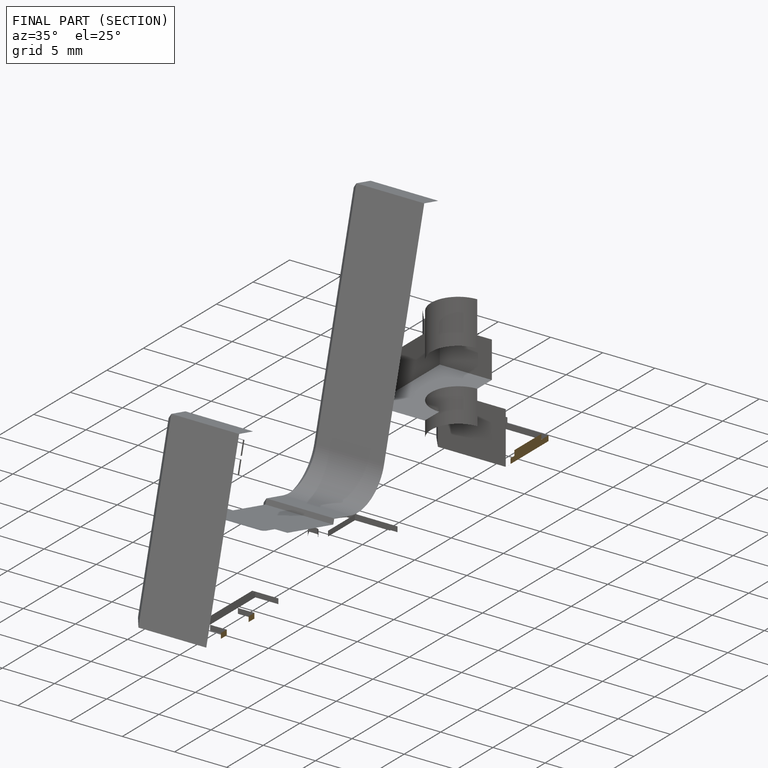
[diagram: finished part — half-section view (interior)]
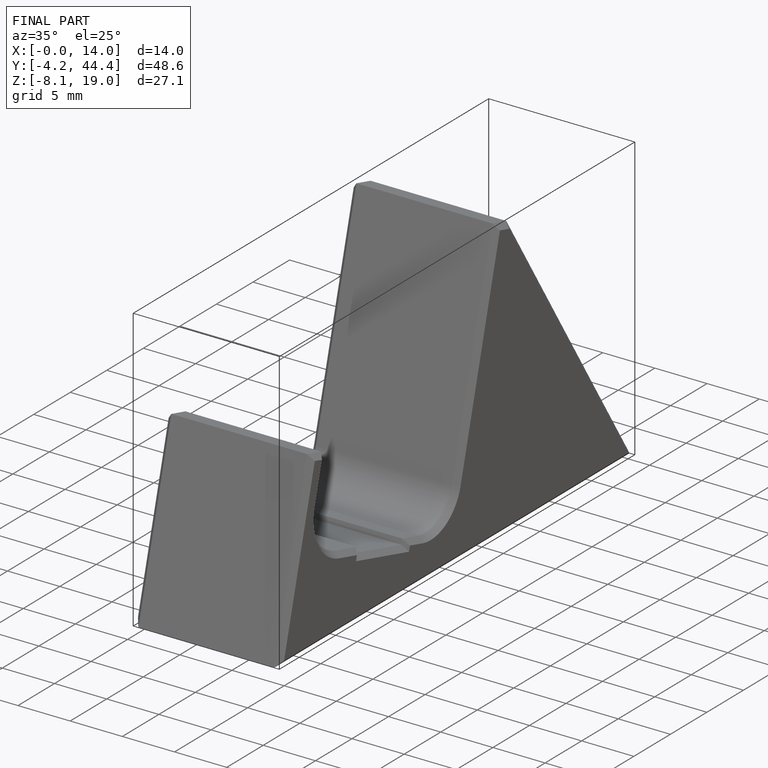
[diagram: finished part — iso view with bounding-box wireframe]
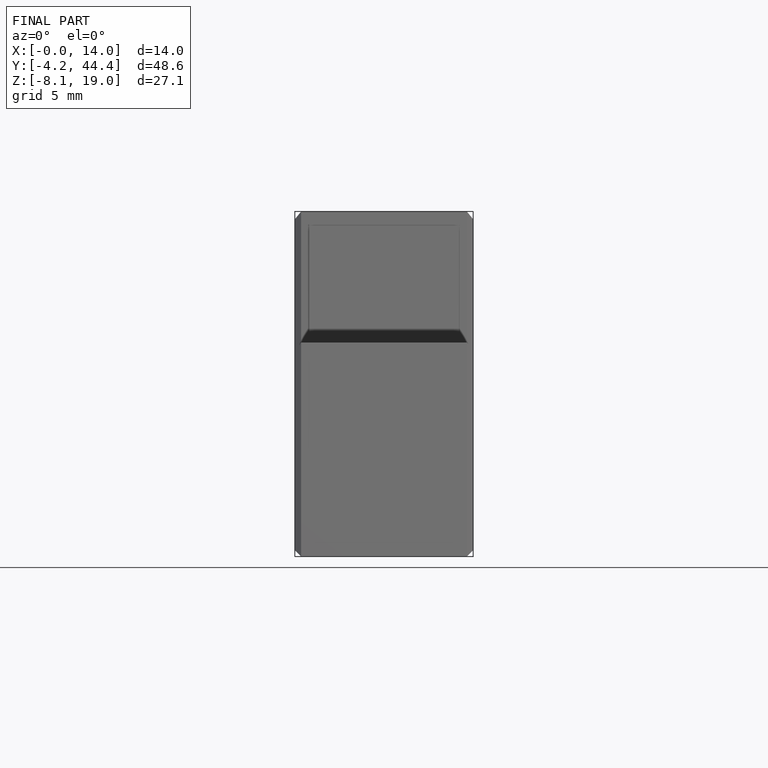
[diagram: finished part — front view with bounding-box wireframe]
